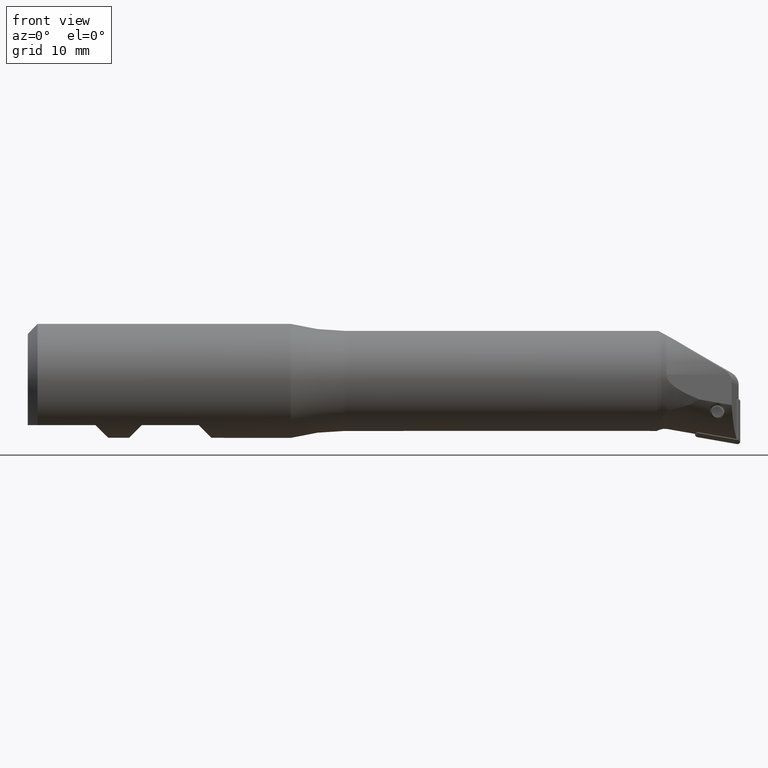
[diagram: clean part render]
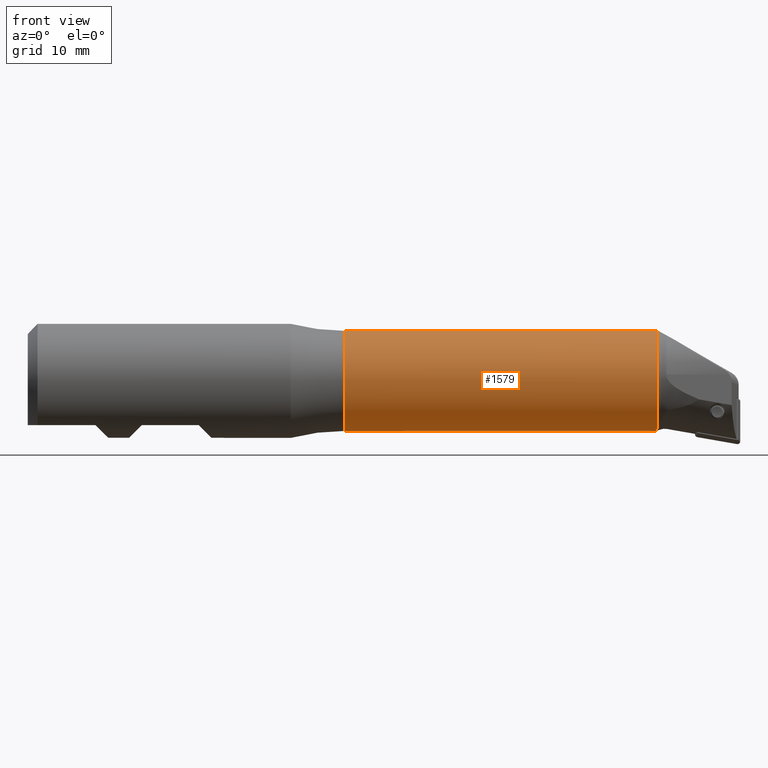
[diagram: same view with one face highlighted and labeled with its STEP entity id]
A machine part, front view. The second image highlights one B-rep face of the part: STEP entity #1579.
In plain terms, the highlighted cylindrical surface (bore or boss wall) has radius 7.025 mm, axis along (-1, -0, -0).
Its self-contained STEP definition (entity closure, byte-faithful):
#114 = CARTESIAN_POINT ( 'NONE',  ( 78.48016190078260500, 3.714360028445096600, -5.964181151039362300 ) ) ;
#124 = AXIS2_PLACEMENT_3D ( 'NONE', #2948, #1512, #3522 ) ;
#136 = VERTEX_POINT ( 'NONE', #738 ) ;
#207 = CARTESIAN_POINT ( 'NONE',  ( 80.09883972704597000, 6.579638713233424400, -2.501489515507856300 ) ) ;
#229 = B_SPLINE_CURVE_WITH_KNOTS ( 'NONE', 3,
 ( #2487, #788, #2769, #799, #1630, #2535, #531, #814 ),
 .UNSPECIFIED., .F., .F.,
 ( 4, 2, 2, 4 ),
 ( 0.0002003714906637348400, 0.001565018190421446700, 0.002247341540300303600, 0.002929664890179161500 ),
 .UNSPECIFIED. ) ;
#231 = EDGE_LOOP ( 'NONE', ( #2476, #590, #988, #1966 ) ) ;
#356 = CIRCLE ( 'NONE', #2127, 7.025000000000000400 ) ;
#357 = FACE_OUTER_BOUND ( 'NONE', #231, .T. ) ;
#376 = DIRECTION ( 'NONE',  ( 1.000000000000000000, 0.0000000000000000000, 0.0000000000000000000 ) ) ;
#386 = LINE ( 'NONE', #1795, #2564 ) ;
#407 = CARTESIAN_POINT ( 'NONE',  ( 83.62368403754797400, 6.963657250958777700, 0.9992598958368196200 ) ) ;
#421 = CARTESIAN_POINT ( 'NONE',  ( 86.59774638230358300, 6.211437759830405800, 3.353418802701968900 ) ) ;
#494 = CARTESIAN_POINT ( 'NONE',  ( 79.36906384271077300, 2.454102748475620800, -6.585677265033544000 ) ) ;
#503 = EDGE_CURVE ( 'NONE', #136, #2768, #356, .T. ) ;
#531 = CARTESIAN_POINT ( 'NONE',  ( 88.36218842345742500, -2.435528390872344400, -6.593241831360415100 ) ) ;
#590 = ORIENTED_EDGE ( 'NONE', *, *, #2840, .T. ) ;
#689 = CARTESIAN_POINT ( 'NONE',  ( 79.08983920588767100, 2.742702684292897400, -6.468306739045884200 ) ) ;
#704 = CARTESIAN_POINT ( 'NONE',  ( 80.46043219655041400, 6.717093511994088200, -2.098255069323890200 ) ) ;
#738 = CARTESIAN_POINT ( 'NONE',  ( 88.39497037018686900, -2.646782337509523000, -6.507316517416965600 ) ) ;
#774 = CARTESIAN_POINT ( 'NONE',  ( 80.72328242741122000, 1.512325713734414800, -6.864349848761718500 ) ) ;
#788 = CARTESIAN_POINT ( 'NONE',  ( 88.26356148414257100, -0.4320911061452691300, -7.026624849376388800 ) ) ;
#799 = CARTESIAN_POINT ( 'NONE',  ( 88.28258391693773900, -1.557213305748654100, -6.854034826929585700 ) ) ;
#814 = CARTESIAN_POINT ( 'NONE',  ( 88.39497037018686900, -2.646782337509523000, -6.507316517416965600 ) ) ;
#958 = CARTESIAN_POINT ( 'NONE',  ( 81.60389016913822500, 6.977727277770967800, -0.9013639154538439800 ) ) ;
#970 = DIRECTION ( 'NONE',  ( -1.000000000000000000, -0.0000000000000000000, -0.0000000000000000000 ) ) ;
#988 = ORIENTED_EDGE ( 'NONE', *, *, #503, .T. ) ;
#1006 = CARTESIAN_POINT ( 'NONE',  ( 79.42830625997798700, 6.210928785455456200, -3.312621169840660700 ) ) ;
#1058 = CARTESIAN_POINT ( 'NONE',  ( 85.51149688158274400, 0.1457963899934433800, -7.023652787472152600 ) ) ;
#1208 = CARTESIAN_POINT ( 'NONE',  ( 88.29194560070281700, 0.02565522460066220500, -7.024953153541317400 ) ) ;
#1209 = VERTEX_POINT ( 'NONE', #1208 ) ;
#1252 = CARTESIAN_POINT ( 'NONE',  ( 88.39497037018686900, 5.461390188572096300, 4.418579206958777500 ) ) ;
#1261 = DIRECTION ( 'NONE',  ( 0.0000000000000000000, 0.0000000000000000000, 1.000000000000000000 ) ) ;
#1262 = CARTESIAN_POINT ( 'NONE',  ( 83.32355873028579700, 0.5445448375912266300, -7.005649617641913600 ) ) ;
#1265 = EDGE_CURVE ( 'NONE', #3011, #3011, #2704, .T. ) ;
#1269 = CARTESIAN_POINT ( 'NONE',  ( 44.49999999999999300, 0.0000000000000000000, 7.025000000000003900 ) ) ;
#1280 = CARTESIAN_POINT ( 'NONE',  ( 79.00222303807851200, 2.842342763911620600, -6.425318244379148800 ) ) ;
#1336 = CARTESIAN_POINT ( 'NONE',  ( 78.57520474084452600, 3.488484987275733800, -6.099049083002666900 ) ) ;
#1395 = EDGE_LOOP ( 'NONE', ( #1700 ) ) ;
#1412 = CARTESIAN_POINT ( 'NONE',  ( 87.73614543730272400, 0.02565522460056511200, -7.024953153541378700 ) ) ;
#1512 = DIRECTION ( 'NONE',  ( -1.000000000000000000, -0.0000000000000000000, -0.0000000000000000000 ) ) ;
#1526 = CARTESIAN_POINT ( 'NONE',  ( 84.04462124495623200, 6.900430899219693400, 1.365407656949629600 ) ) ;
#1538 = CARTESIAN_POINT ( 'NONE',  ( 84.95657624791879000, 0.2190332188249412300, -7.022294508662635200 ) ) ;
#1556 = CARTESIAN_POINT ( 'NONE',  ( 79.11582922249675700, 5.977395427000820900, -3.724253713866297200 ) ) ;
#1579 = ADVANCED_FACE ( 'NONE', ( #3530, #357 ), #2451, .T. ) ;
#1617 = CARTESIAN_POINT ( 'NONE',  ( 78.44197537441049000, 3.829852998491209500, -5.890835486833017500 ) ) ;
#1630 = CARTESIAN_POINT ( 'NONE',  ( 88.29648352099363300, -1.781033095390418500, -6.799337927034877700 ) ) ;
#1700 = ORIENTED_EDGE ( 'NONE', *, *, #1265, .F. ) ;
#1774 = DIRECTION ( 'NONE',  ( 0.0000000000000000000, 0.0000000000000000000, 1.000000000000000000 ) ) ;
#1795 = CARTESIAN_POINT ( 'NONE',  ( -3.175455607189904900, 0.02565522460047848400, -7.024953153541362700 ) ) ;
#1801 = CARTESIAN_POINT ( 'NONE',  ( 78.45917634928336800, 5.014464427678145600, -4.927184333201641000 ) ) ;
#1811 = CARTESIAN_POINT ( 'NONE',  ( 87.47558456932995300, 5.860340770934524100, 3.925473913563139600 ) ) ;
#1844 = CARTESIAN_POINT ( 'NONE',  ( 87.17790572545247600, 0.02565522460067217600, -7.024953153541367200 ) ) ;
#1966 = ORIENTED_EDGE ( 'NONE', *, *, #3145, .T. ) ;
#2017 = VERTEX_POINT ( 'NONE', #1412 ) ;
#2127 = AXIS2_PLACEMENT_3D ( 'NONE', #3487, #970, #1261 ) ;
#2183 = CARTESIAN_POINT ( 'NONE',  ( 78.39863971304610900, 4.820048880403789800, -5.118293137207254000 ) ) ;
#2194 = CARTESIAN_POINT ( 'NONE',  ( 86.62129872890507400, 0.04926417384763812100, -7.024993103731530300 ) ) ;
#2397 = CARTESIAN_POINT ( 'NONE',  ( 78.83971984504677300, 3.049375114064876200, -6.329687065158446500 ) ) ;
#2410 = CARTESIAN_POINT ( 'NONE',  ( 82.79930813803933600, 7.030443616815887300, 0.2527947765112030200 ) ) ;
#2451 = CYLINDRICAL_SURFACE ( 'NONE', #3103, 7.025000000000002100 ) ;
#2475 = CARTESIAN_POINT ( 'NONE',  ( 78.63226916863500500, 3.377099196627892500, -6.161265236790137000 ) ) ;
#2476 = ORIENTED_EDGE ( 'NONE', *, *, #3688, .T. ) ;
#2484 = CARTESIAN_POINT ( 'NONE',  ( 81.74062558458193500, 1.047782309035566500, -6.950437406630565600 ) ) ;
#2487 = CARTESIAN_POINT ( 'NONE',  ( 88.29194560070281700, 0.02565522460066220500, -7.024953153541317400 ) ) ;
#2535 = CARTESIAN_POINT ( 'NONE',  ( 88.33632208731319200, -2.220107055538445900, -6.668897944551208200 ) ) ;
#2564 = VECTOR ( 'NONE', #376, 1000.000000000000000 ) ;
#2669 = CARTESIAN_POINT ( 'NONE',  ( 85.31092170451783800, 6.611960565922117000, 2.398289057293007300 ) ) ;
#2680 = CARTESIAN_POINT ( 'NONE',  ( 78.76436568054573700, 3.157646690664878400, -6.276564002611342700 ) ) ;
#2691 = CARTESIAN_POINT ( 'NONE',  ( 81.21601858341607300, 6.917051491303053200, -1.294765712968434200 ) ) ;
#2704 = CIRCLE ( 'NONE', #124, 7.025000000000003900 ) ;
#2741 = B_SPLINE_CURVE_WITH_KNOTS ( 'NONE', 3,
 ( #1252, #1811, #421, #2669, #2950, #1526, #407, #2410, #3267, #958, #2691, #704, #207, #1006, #1556, #3237, #3335, #1801, #2183, #2751, #3540, #1617, #114, #1336, #2475, #2680, #2397, #1280, #689, #494, #2963, #2940, #774, #2484, #3254, #1262, #3570, #1538, #1058, #2194, #1844, #3556 ),
 .UNSPECIFIED., .F., .F.,
 ( 4, 2, 2, 2, 2, 2, 2, 2, 2, 2, 2, 2, 2, 2, 2, 2, 2, 2, 2, 2, 4 ),
 ( 0.0000000000000000000, 0.003303224587442845700, 0.004954836881164251600, 0.006606449174885658400, 0.008258061468607063400, 0.009909673762328470200, 0.01156128605604987900, 0.01321289834977128400, 0.01403870449663199000, 0.01486451064349269200, 0.01569031679035339300, 0.01610321986378375100, 0.01651612293721410600, 0.01692902601064446100, 0.01734192908407481600, 0.01816773523093553500, 0.01981934752465696500, 0.02147095981837839800, 0.02312257211209983000, 0.02477418440582126000, 0.02642579669954268900 ),
 .UNSPECIFIED. ) ;
#2751 = CARTESIAN_POINT ( 'NONE',  ( 78.34816419059944800, 4.395258016332574500, -5.487394902659088000 ) ) ;
#2768 = VERTEX_POINT ( 'NONE', #3396 ) ;
#2769 = CARTESIAN_POINT ( 'NONE',  ( 88.25801679114871900, -0.8850120754412711400, -6.983960579769910900 ) ) ;
#2840 = EDGE_CURVE ( 'NONE', #1209, #136, #229, .T. ) ;
#2894 = DIRECTION ( 'NONE',  ( -1.000000000000000000, -0.0000000000000000000, -0.0000000000000000000 ) ) ;
#2940 = CARTESIAN_POINT ( 'NONE',  ( 80.24005706570950700, 1.781890466508154100, -6.803957024612693700 ) ) ;
#2948 = CARTESIAN_POINT ( 'NONE',  ( 44.49999999999999300, 0.0000000000000000000, 0.0000000000000000000 ) ) ;
#2950 = CARTESIAN_POINT ( 'NONE',  ( 84.88699543569838100, 6.724659141971120100, 2.063793615860560300 ) ) ;
#2963 = CARTESIAN_POINT ( 'NONE',  ( 79.57892416504475400, 2.274072986201848900, -6.648969996193343100 ) ) ;
#3011 = VERTEX_POINT ( 'NONE', #1269 ) ;
#3103 = AXIS2_PLACEMENT_3D ( 'NONE', #3494, #2894, #1774 ) ;
#3145 = EDGE_CURVE ( 'NONE', #2768, #2017, #2741, .T. ) ;
#3237 = CARTESIAN_POINT ( 'NONE',  ( 78.74104378511522400, 5.537857337069510800, -4.329542160351337500 ) ) ;
#3254 = CARTESIAN_POINT ( 'NONE',  ( 82.26258174854378100, 0.8593827059582317400, -6.974031618082428900 ) ) ;
#3267 = CARTESIAN_POINT ( 'NONE',  ( 82.39548170168801300, 7.034548289678270700, -0.1275352155912083100 ) ) ;
#3335 = CARTESIAN_POINT ( 'NONE',  ( 78.63044200327863100, 5.374198929396622600, -4.532106002408748500 ) ) ;
#3396 = CARTESIAN_POINT ( 'NONE',  ( 88.39497037018686900, 5.461390188572096300, 4.418579206958777500 ) ) ;
#3487 = CARTESIAN_POINT ( 'NONE',  ( 88.39497037018686900, 0.0000000000000000000, 0.0000000000000000000 ) ) ;
#3494 = CARTESIAN_POINT ( 'NONE',  ( -3.175455607189903200, 0.0000000000000000000, 0.0000000000000000000 ) ) ;
#3522 = DIRECTION ( 'NONE',  ( 0.0000000000000000000, 0.0000000000000000000, 1.000000000000000000 ) ) ;
#3530 = FACE_OUTER_BOUND ( 'NONE', #1395, .T. ) ;
#3540 = CARTESIAN_POINT ( 'NONE',  ( 78.35990305232238000, 4.172871151905006600, -5.658103767299756700 ) ) ;
#3556 = CARTESIAN_POINT ( 'NONE',  ( 87.73614543730272400, 0.02565522460056511200, -7.024953153541378700 ) ) ;
#3570 = CARTESIAN_POINT ( 'NONE',  ( 83.86298907305965100, 0.4185344526557085400, -7.013232110039021800 ) ) ;
#3688 = EDGE_CURVE ( 'NONE', #2017, #1209, #386, .T. ) ;